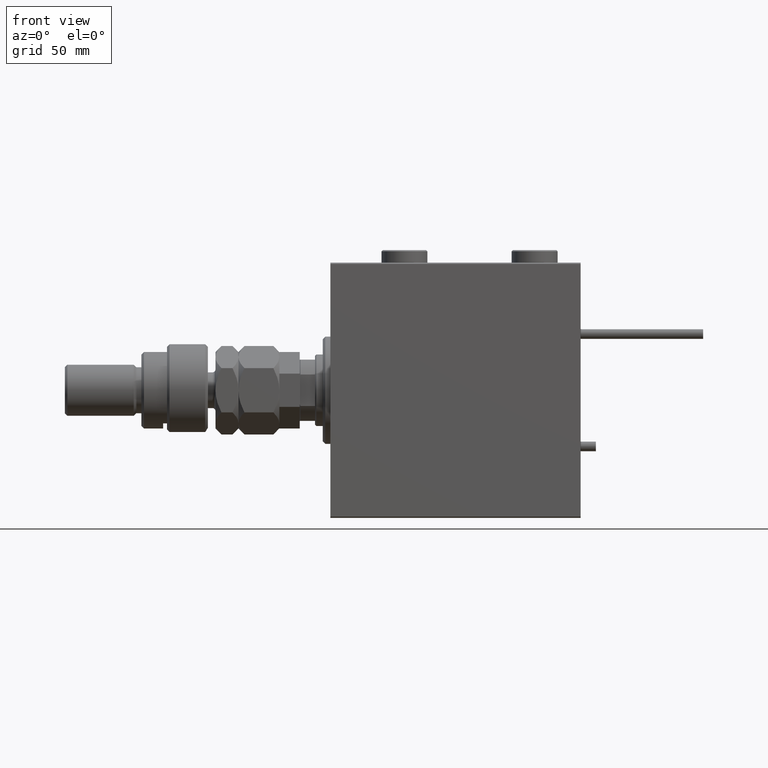
[diagram: clean part render]
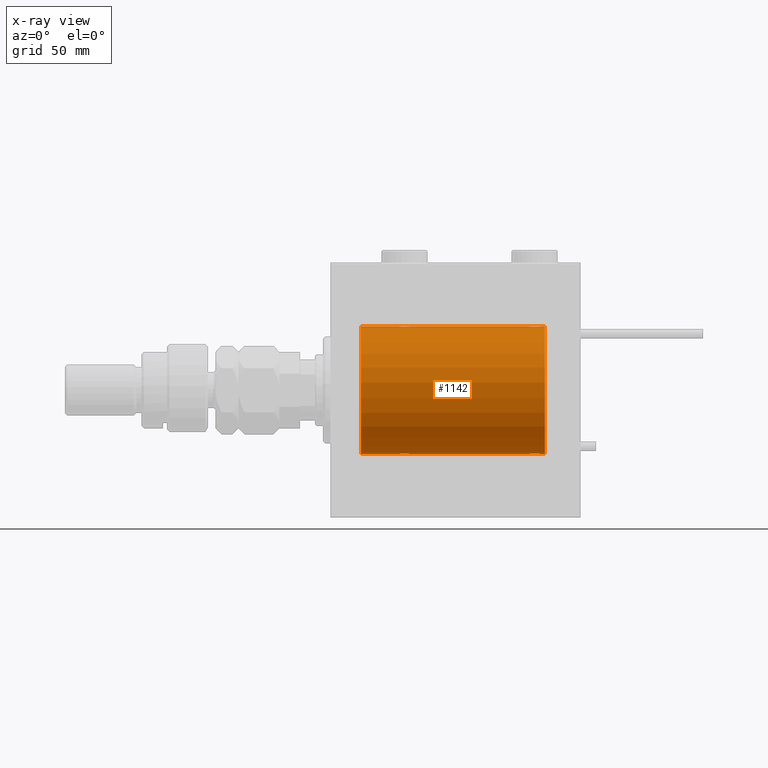
[diagram: x-ray — body ghosted, one internal face saturated and labeled with its STEP entity id]
A machine part, front view, then the same camera in x-ray: the body is ghosted and one INTERNAL B-rep face — a face not visible from any outside direction — is saturated and labeled: STEP entity #1142.
In plain terms, the highlighted cylindrical surface (partial cylindrical patch) has radius 25 mm, axis along (-1, -0, -0).
Its self-contained STEP definition (entity closure, byte-faithful):
#157 = VERTEX_POINT ( 'NONE', #38398 ) ;
#480 = DIRECTION ( 'NONE',  ( -1.000000000000000000, -0.000000000000000000, -0.000000000000000000 ) ) ;
#541 = CARTESIAN_POINT ( 'NONE',  ( 80.80788342405803348, -2.371528299825742092, -24.88734287464371064 ) ) ;
#613 = CARTESIAN_POINT ( 'NONE',  ( 82.24606379094068132, -1.109818057797411051, 24.97580694515542277 ) ) ;
#890 = CARTESIAN_POINT ( 'NONE',  ( 77.51582159942344674, -0.3254210271412246169, 24.99840249400844883 ) ) ;
#1024 = DIRECTION ( 'NONE',  ( -1.000000000000000000, -0.000000000000000000, -0.000000000000000000 ) ) ;
#1142 = ADVANCED_FACE ( 'NONE', ( #21815 ), #38948, .F. ) ;
#1162 = CARTESIAN_POINT ( 'NONE',  ( 82.50000000000005684, -0.3305063766663757230, 25.00000000000000711 ) ) ;
#1298 = CARTESIAN_POINT ( 'NONE',  ( 30.11036796508863844, -2.245863995402896496, -24.89899750494197406 ) ) ;
#1342 = B_SPLINE_CURVE_WITH_KNOTS ( 'NONE', 3,
 ( #16990, #11958, #46472, #34106, #51235, #29061, #12785, #20088, #8023, #25667, #2953, #46744, #20644, #37222, #15884, #45914, #37778, #11681, #25129, #42260, #3793, #20913, #28786, #55166, #33833, #7449, #24566, #42809, #21732, #21466, #39140, #9385 ),
 .UNSPECIFIED., .F., .F.,
 ( 4, 2, 2, 2, 2, 2, 2, 2, 2, 2, 2, 2, 2, 2, 2, 4 ),
 ( 0.007821024441662254717, 0.008309723826317859385, 0.008798423210973465788, 0.009287122595629072191, 0.009775821980284676860, 0.01026452136494028153, 0.01075322074959588793, 0.01124192013425149433, 0.01173061951890709900, 0.01221931890356270367, 0.01270801828821831007, 0.01319671767287391648, 0.01368541705752952115, 0.01417411644218512581, 0.01466281582684073222, 0.01564021459615194329 ),
 .UNSPECIFIED. ) ;
#1365 = CARTESIAN_POINT ( 'NONE',  ( 80.64904390169097326, -2.419770561643902695, -24.88263927071750814 ) ) ;
#1578 = CARTESIAN_POINT ( 'NONE',  ( 28.67403429960539540, -2.484007091859760319, -24.87630842367762440 ) ) ;
#2953 = CARTESIAN_POINT ( 'NONE',  ( 27.47463817756919369, -1.987446652080268938, 24.92104239223420592 ) ) ;
#3245 = LINE ( 'NONE', #45368, #17620 ) ;
#3661 = B_SPLINE_CURVE_WITH_KNOTS ( 'NONE', 3,
 ( #6218, #13823, #890, #44410, #18019, #52557, #18574, #13548, #34870, #40194, #31484, #52001, #48616, #53107, #47765, #43848, #9615, #27271, #18859, #30644, #26710, #35987, #31759, #48899, #10454, #5381, #23344, #39635, #613, #43570, #1162, #5099 ),
 .UNSPECIFIED., .F., .F.,
 ( 4, 2, 2, 2, 2, 2, 2, 2, 2, 2, 2, 2, 2, 2, 2, 4 ),
 ( 0.007821024441662285942, 0.008309723826317894080, 0.008798423210973503952, 0.009287122595629112090, 0.009775821980284721963, 0.01026452136494033010, 0.01075322074959593997, 0.01124192013425154811, 0.01173061951890715798, 0.01221931890356276612, 0.01270801828821837426, 0.01319671767287398240, 0.01368541705752959400, 0.01417411644218520214, 0.01466281582684081028, 0.01564021459615201268 ),
 .UNSPECIFIED. ) ;
#3793 = CARTESIAN_POINT ( 'NONE',  ( 29.80435660916301899, -2.372734907014179662, 24.88722742718433878 ) ) ;
#4206 = CARTESIAN_POINT ( 'NONE',  ( 82.42014909220930008, -0.6480119923854186226, -24.99212088949390775 ) ) ;
#5099 = CARTESIAN_POINT ( 'NONE',  ( 82.50000000000001421, 2.858952873890094713E-15, 25.00000000000000000 ) ) ;
#5300 = CARTESIAN_POINT ( 'NONE',  ( 78.89276154161592558, -2.247417070759896607, -24.89885693081946272 ) ) ;
#5381 = CARTESIAN_POINT ( 'NONE',  ( 81.88185954148649159, -1.653834020452933817, 24.94550385189585029 ) ) ;
#5517 = CARTESIAN_POINT ( 'NONE',  ( 30.65383336149338689, -1.881857718844712757, -24.92933960374833902 ) ) ;
#5580 = CARTESIAN_POINT ( 'NONE',  ( 77.56650644760256341, -0.6588655613945877398, -24.99312727339970408 ) ) ;
#5790 = CARTESIAN_POINT ( 'NONE',  ( 30.98749815834399257, -1.525407911884362644, -24.95379469572362652 ) ) ;
#6068 = CARTESIAN_POINT ( 'NONE',  ( 28.19564339083698457, -2.372734907014170780, -24.88722742718433878 ) ) ;
#6218 = CARTESIAN_POINT ( 'NONE',  ( 77.50000000000001421, -1.940203396391078535E-23, 25.00000000000000000 ) ) ;
#7449 = CARTESIAN_POINT ( 'NONE',  ( 30.88185954148645962, -1.653834020452941589, 24.94550385189585029 ) ) ;
#7597 = CARTESIAN_POINT ( 'NONE',  ( 82.17011290280929359, -1.252049606094341572, -24.96900299967627745 ) ) ;
#7988 = LINE ( 'NONE', #32685, #20428 ) ;
#8023 = CARTESIAN_POINT ( 'NONE',  ( 27.11587617213528745, -1.651251241585107055, 24.94567559498349141 ) ) ;
#8046 = EDGE_CURVE ( 'NONE', #24878, #50093, #42377, .T. ) ;
#8187 = DIRECTION ( 'NONE',  ( -1.000000000000000000, -0.000000000000000000, -0.000000000000000000 ) ) ;
#8225 = ORIENTED_EDGE ( 'NONE', *, *, #40697, .T. ) ;
#8368 = CARTESIAN_POINT ( 'NONE',  ( 31.50000000000000000, 3.061616978460191625E-15, -25.00000000000000000 ) ) ;
#8433 = CARTESIAN_POINT ( 'NONE',  ( 82.50000000000000000, -0.1631750940176171505, -25.00000000000000355 ) ) ;
#8586 = CARTESIAN_POINT ( 'NONE',  ( 82.50000000000001421, 3.061616978466502512E-15, -25.00000000000000000 ) ) ;
#9117 = ORIENTED_EDGE ( 'NONE', *, *, #49446, .F. ) ;
#9385 = CARTESIAN_POINT ( 'NONE',  ( 31.50000000000000000, -2.695968940278339017E-15, 25.00000000000000000 ) ) ;
#9534 = VECTOR ( 'NONE', #10228, 1000.000000000000000 ) ;
#9535 = CARTESIAN_POINT ( 'NONE',  ( 80.32947680114270383, -2.483544361357264751, -24.87635491893501438 ) ) ;
#9615 = CARTESIAN_POINT ( 'NONE',  ( 79.83293504821945419, -2.499872792855085013, 24.87469871246082675 ) ) ;
#9750 = CARTESIAN_POINT ( 'NONE',  ( 31.50000000000000000, 3.061616978460191625E-15, -25.00000000000000000 ) ) ;
#9933 = DIRECTION ( 'NONE',  ( 0.000000000000000000, 0.000000000000000000, 1.000000000000000000 ) ) ;
#9952 = CARTESIAN_POINT ( 'NONE',  ( 84.00000000000000000, 3.061616997868382254E-15, -25.00000000000000000 ) ) ;
#10228 = DIRECTION ( 'NONE',  ( -1.000000000000000000, -0.000000000000000000, -0.000000000000000000 ) ) ;
#10347 = EDGE_CURVE ( 'NONE', #22539, #47241, #1342, .T. ) ;
#10454 = CARTESIAN_POINT ( 'NONE',  ( 81.65121133559114242, -1.884161199660613351, 24.92916496727982434 ) ) ;
#10583 = CARTESIAN_POINT ( 'NONE',  ( 28.35439333851369526, -2.420689345803757053, -24.88254961038873958 ) ) ;
#10866 = CARTESIAN_POINT ( 'NONE',  ( 31.24760251019550950, -1.106703319666878960, -24.97594585958023217 ) ) ;
#11681 = CARTESIAN_POINT ( 'NONE',  ( 29.16323589638543368, -2.500125740978199840, 24.87467329022545570 ) ) ;
#11845 = AXIS2_PLACEMENT_3D ( 'NONE', #34732, #480, #25213 ) ;
#11958 = CARTESIAN_POINT ( 'NONE',  ( 26.50000000000000711, -0.1631750940176214526, 25.00000000000000711 ) ) ;
#12228 = ORIENTED_EDGE ( 'NONE', *, *, #19461, .F. ) ;
#12353 = AXIS2_PLACEMENT_3D ( 'NONE', #18897, #27031, #9933 ) ;
#12785 = CARTESIAN_POINT ( 'NONE',  ( 26.82988709719075970, -1.252049606094344236, 24.96900299967627390 ) ) ;
#13180 = CARTESIAN_POINT ( 'NONE',  ( 31.50000000000000000, -2.695968940278339017E-15, 25.00000000000000000 ) ) ;
#13399 = EDGE_CURVE ( 'NONE', #23662, #53633, #36044, .T. ) ;
#13485 = CARTESIAN_POINT ( 'NONE',  ( 82.50000000000001421, 2.858952873890094713E-15, 25.00000000000000000 ) ) ;
#13548 = CARTESIAN_POINT ( 'NONE',  ( 78.01250184165604651, -1.525407911884365530, 24.95379469572362297 ) ) ;
#13745 = CARTESIAN_POINT ( 'NONE',  ( 81.52536182243082408, -1.987446652080251619, -24.92104239223420592 ) ) ;
#13746 = VECTOR ( 'NONE', #33121, 1000.000000000000000 ) ;
#13823 = CARTESIAN_POINT ( 'NONE',  ( 77.50000000000004263, -0.1631750940176218967, 25.00000000000000355 ) ) ;
#13956 = CARTESIAN_POINT ( 'NONE',  ( 84.00000000000000000, 0.000000000000000000, 25.00000000000000000 ) ) ;
#13957 = CARTESIAN_POINT ( 'NONE',  ( 27.89276154161589716, -2.247417070759893498, -24.89885693081946272 ) ) ;
#14289 = DIRECTION ( 'NONE',  ( -1.000000000000000000, 0.000000000000000000, 0.000000000000000000 ) ) ;
#14317 = VERTEX_POINT ( 'NONE', #9750 ) ;
#14403 = CARTESIAN_POINT ( 'NONE',  ( 77.50000000000001421, -1.940203396391078535E-23, 25.00000000000000000 ) ) ;
#14631 = EDGE_LOOP ( 'NONE', ( #12228, #29991, #28186, #8225, #17453, #40733, #23167, #37527, #25651, #9117, #34625, #49232 ) ) ;
#15884 = CARTESIAN_POINT ( 'NONE',  ( 28.35095609830903740, -2.419770561643915130, 24.88263927071751169 ) ) ;
#16009 = CARTESIAN_POINT ( 'NONE',  ( 84.00000000000000000, 0.000000000000000000, 25.00000000000000000 ) ) ;
#16990 = CARTESIAN_POINT ( 'NONE',  ( 26.50000000000000355, -1.940558383798427991E-23, 25.00000000000000000 ) ) ;
#17397 = CARTESIAN_POINT ( 'NONE',  ( 81.65383336149341176, -1.881857718844715421, -24.92933960374833546 ) ) ;
#17453 = ORIENTED_EDGE ( 'NONE', *, *, #28473, .T. ) ;
#17620 = VECTOR ( 'NONE', #24578, 1000.000000000000000 ) ;
#17944 = CARTESIAN_POINT ( 'NONE',  ( 77.50000000000001421, -3.163294216715586498E-15, -25.00000000000000000 ) ) ;
#18019 = CARTESIAN_POINT ( 'NONE',  ( 77.62784030591393503, -0.8058335233485520721, 24.98746277938383287 ) ) ;
#18431 = CARTESIAN_POINT ( 'NONE',  ( 29.16706495178061331, -2.499872792855078352, -24.87469871246083031 ) ) ;
#18495 = CARTESIAN_POINT ( 'NONE',  ( 81.88412382786472676, -1.651251241585101059, -24.94567559498348430 ) ) ;
#18574 = CARTESIAN_POINT ( 'NONE',  ( 77.82988709719073483, -1.252049606094335799, 24.96900299967626680 ) ) ;
#18859 = CARTESIAN_POINT ( 'NONE',  ( 80.32596570039464723, -2.484007091859765204, 24.87630842367763861 ) ) ;
#18897 = CARTESIAN_POINT ( 'NONE',  ( 84.00000000000000000, 0.000000000000000000, 0.000000000000000000 ) ) ;
#19267 = CARTESIAN_POINT ( 'NONE',  ( 29.80788342405805125, -2.371528299825743424, -24.88734287464369999 ) ) ;
#19461 = EDGE_CURVE ( 'NONE', #23662, #24878, #51758, .T. ) ;
#19889 = CARTESIAN_POINT ( 'NONE',  ( 26.50000000000000355, -3.314090237927254693E-15, -25.00000000000000000 ) ) ;
#20088 = CARTESIAN_POINT ( 'NONE',  ( 27.01250184165601809, -1.525407911884372192, 24.95379469572361941 ) ) ;
#20428 = VECTOR ( 'NONE', #54863, 1000.000000000000000 ) ;
#20644 = CARTESIAN_POINT ( 'NONE',  ( 27.88963203491136156, -2.245863995402906266, 24.89899750494197050 ) ) ;
#20913 = CARTESIAN_POINT ( 'NONE',  ( 30.10723845838410284, -2.247417070759902380, 24.89885693081946272 ) ) ;
#21329 = CARTESIAN_POINT ( 'NONE',  ( 82.37215969408609340, -0.8058335233485441895, -24.98746277938383287 ) ) ;
#21466 = CARTESIAN_POINT ( 'NONE',  ( 31.43349355239747567, -0.6588655613945894052, 24.99312727339970053 ) ) ;
#21732 = CARTESIAN_POINT ( 'NONE',  ( 31.24606379094067066, -1.109818057797418822, 24.97580694515541921 ) ) ;
#21815 = FACE_OUTER_BOUND ( 'NONE', #14631, .T. ) ;
#22429 = CARTESIAN_POINT ( 'NONE',  ( 81.98749815834398191, -1.525407911884367529, -24.95379469572361586 ) ) ;
#22539 = VERTEX_POINT ( 'NONE', #32870 ) ;
#22638 = CARTESIAN_POINT ( 'NONE',  ( 27.01461966282905891, -1.528152964861308138, -24.95362559291378801 ) ) ;
#22917 = CARTESIAN_POINT ( 'NONE',  ( 27.47743225659811017, -1.989585286700241928, -24.92087098724766037 ) ) ;
#23167 = ORIENTED_EDGE ( 'NONE', *, *, #48241, .T. ) ;
#23198 = CARTESIAN_POINT ( 'NONE',  ( 31.17011290280923674, -1.252049606094335132, -24.96900299967627035 ) ) ;
#23344 = CARTESIAN_POINT ( 'NONE',  ( 81.98538033717099438, -1.528152964861309915, 24.95362559291379156 ) ) ;
#23477 = CARTESIAN_POINT ( 'NONE',  ( 31.37215969408607563, -0.8058335233485421911, -24.98746277938383287 ) ) ;
#23662 = VERTEX_POINT ( 'NONE', #48836 ) ;
#24405 = EDGE_CURVE ( 'NONE', #22539, #157, #7988, .T. ) ;
#24566 = CARTESIAN_POINT ( 'NONE',  ( 30.98538033717095175, -1.528152964861314800, 24.95362559291378801 ) ) ;
#24569 = B_SPLINE_CURVE_WITH_KNOTS ( 'NONE', 3,
 ( #8368, #25475, #27125, #36114, #23477, #10866, #23198, #5790, #53519, #5517, #27405, #31342, #1298, #19267, #40048, #35843, #18431, #52404, #1578, #10583, #6068, #13957, #35565, #22917, #27971, #49029, #22638, #39770, #45098, #52693, #31612, #48466 ),
 .UNSPECIFIED., .F., .F.,
 ( 4, 2, 2, 2, 2, 2, 2, 2, 2, 2, 2, 2, 2, 2, 2, 4 ),
 ( 0.007821024441662303289, 0.008309723826317913162, 0.008798423210973523034, 0.009287122595629127703, 0.009775821980284732371, 0.01026452136494033877, 0.01075322074959594518, 0.01124192013425154985, 0.01173061951890715451, 0.01221931890356276092, 0.01270801828821836559, 0.01319671767287397025, 0.01368541705752957666, 0.01417411644218518132, 0.01466281582684078599, 0.01564021459615200227 ),
 .UNSPECIFIED. ) ;
#24578 = DIRECTION ( 'NONE',  ( -1.000000000000000000, -0.000000000000000000, -0.000000000000000000 ) ) ;
#24878 = VERTEX_POINT ( 'NONE', #45465 ) ;
#25129 = CARTESIAN_POINT ( 'NONE',  ( 29.32596570039460104, -2.484007091859769645, 24.87630842367763506 ) ) ;
#25213 = DIRECTION ( 'NONE',  ( 0.000000000000000000, 0.000000000000000000, 1.000000000000000000 ) ) ;
#25475 = CARTESIAN_POINT ( 'NONE',  ( 31.49999999999999289, -0.1631750940176174836, -25.00000000000000711 ) ) ;
#25536 = CARTESIAN_POINT ( 'NONE',  ( 82.48417840057659589, -0.3254210271412191768, -24.99840249400844883 ) ) ;
#25651 = ORIENTED_EDGE ( 'NONE', *, *, #10347, .T. ) ;
#25667 = CARTESIAN_POINT ( 'NONE',  ( 27.34616663850662377, -1.881857718844722971, 24.92933960374833902 ) ) ;
#26636 = CARTESIAN_POINT ( 'NONE',  ( 79.19564339083697746, -2.372734907014171224, -24.88722742718433523 ) ) ;
#26710 = CARTESIAN_POINT ( 'NONE',  ( 80.80435660916305096, -2.372734907014176553, 24.88722742718433523 ) ) ;
#27031 = DIRECTION ( 'NONE',  ( -1.000000000000000000, 0.000000000000000000, 0.000000000000000000 ) ) ;
#27125 = CARTESIAN_POINT ( 'NONE',  ( 31.48417840057656036, -0.3254210271412191213, -24.99840249400844172 ) ) ;
#27271 = CARTESIAN_POINT ( 'NONE',  ( 80.16323589638544433, -2.500125740978196731, 24.87467329022545925 ) ) ;
#27405 = CARTESIAN_POINT ( 'NONE',  ( 30.52536182243080276, -1.987446652080258724, -24.92104239223419881 ) ) ;
#27971 = CARTESIAN_POINT ( 'NONE',  ( 27.34878866440887535, -1.884161199660613351, -24.92916496727982079 ) ) ;
#28186 = ORIENTED_EDGE ( 'NONE', *, *, #36637, .T. ) ;
#28473 = EDGE_CURVE ( 'NONE', #14317, #52354, #24569, .T. ) ;
#28786 = CARTESIAN_POINT ( 'NONE',  ( 30.25084023924055998, -2.170728182476724388, 24.90574631553725027 ) ) ;
#28926 = CARTESIAN_POINT ( 'NONE',  ( 82.24760251019554858, -1.106703319666881180, -24.97594585958024282 ) ) ;
#29061 = CARTESIAN_POINT ( 'NONE',  ( 26.75239748980448695, -1.106703319666887397, 24.97594585958023572 ) ) ;
#29991 = ORIENTED_EDGE ( 'NONE', *, *, #13399, .T. ) ;
#30304 = CARTESIAN_POINT ( 'NONE',  ( 78.74915976075949686, -2.170728182476720391, -24.90574631553725027 ) ) ;
#30644 = CARTESIAN_POINT ( 'NONE',  ( 80.64560666148635448, -2.420689345803758830, 24.88254961038874313 ) ) ;
#31284 = AXIS2_PLACEMENT_3D ( 'NONE', #39543, #14289, #35894 ) ;
#31342 = CARTESIAN_POINT ( 'NONE',  ( 30.25383195424503668, -2.169003991399866660, -24.90589728951138682 ) ) ;
#31484 = CARTESIAN_POINT ( 'NONE',  ( 78.47463817756926119, -1.987446652080270271, 24.92104239223421303 ) ) ;
#31612 = CARTESIAN_POINT ( 'NONE',  ( 26.50000000000001066, -0.3305063766663772773, -25.00000000000000711 ) ) ;
#31759 = CARTESIAN_POINT ( 'NONE',  ( 81.25084023924057419, -2.170728182476720836, 24.90574631553725027 ) ) ;
#32685 = CARTESIAN_POINT ( 'NONE',  ( 84.00000000000000000, 0.000000000000000000, 25.00000000000000000 ) ) ;
#32782 = VECTOR ( 'NONE', #8187, 1000.000000000000000 ) ;
#32788 = CARTESIAN_POINT ( 'NONE',  ( 77.50000000000001421, -3.163294216715586498E-15, -25.00000000000000000 ) ) ;
#32870 = CARTESIAN_POINT ( 'NONE',  ( 26.50000000000000355, -1.940558383798427991E-23, 25.00000000000000000 ) ) ;
#33121 = DIRECTION ( 'NONE',  ( -1.000000000000000000, -0.000000000000000000, -0.000000000000000000 ) ) ;
#33833 = CARTESIAN_POINT ( 'NONE',  ( 30.65121133559112820, -1.884161199660620900, 24.92916496727982434 ) ) ;
#34106 = CARTESIAN_POINT ( 'NONE',  ( 26.57985090779070703, -0.6480119923854241737, 24.99212088949390420 ) ) ;
#34274 = CARTESIAN_POINT ( 'NONE',  ( 84.00000000000000000, 3.061616997868382254E-15, -25.00000000000000000 ) ) ;
#34625 = ORIENTED_EDGE ( 'NONE', *, *, #53228, .T. ) ;
#34732 = CARTESIAN_POINT ( 'NONE',  ( 84.00000000000000000, 0.000000000000000000, 0.000000000000000000 ) ) ;
#34792 = CARTESIAN_POINT ( 'NONE',  ( 79.83676410361458409, -2.500125740978189182, -24.87467329022545215 ) ) ;
#34870 = CARTESIAN_POINT ( 'NONE',  ( 78.11587617213530166, -1.651251241585109275, 24.94567559498348785 ) ) ;
#35071 = CARTESIAN_POINT ( 'NONE',  ( 79.67403429960539540, -2.484007091859756766, -24.87630842367762796 ) ) ;
#35565 = CARTESIAN_POINT ( 'NONE',  ( 27.74915976075945068, -2.170728182476715951, -24.90574631553724672 ) ) ;
#35627 = CARTESIAN_POINT ( 'NONE',  ( 78.47743225659816346, -1.989585286700248590, -24.92087098724766747 ) ) ;
#35843 = CARTESIAN_POINT ( 'NONE',  ( 29.32947680114269318, -2.483544361357266972, -24.87635491893501793 ) ) ;
#35894 = DIRECTION ( 'NONE',  ( 0.000000000000000000, 0.000000000000000000, 1.000000000000000000 ) ) ;
#35987 = CARTESIAN_POINT ( 'NONE',  ( 81.10723845838413126, -2.247417070759898383, 24.89885693081947338 ) ) ;
#36044 = LINE ( 'NONE', #9952, #9534 ) ;
#36114 = CARTESIAN_POINT ( 'NONE',  ( 31.42014909220929653, -0.6480119923854192887, -24.99212088949391131 ) ) ;
#36637 = EDGE_CURVE ( 'NONE', #53633, #43998, #38408, .T. ) ;
#37222 = CARTESIAN_POINT ( 'NONE',  ( 28.19211657594193809, -2.371528299825754083, 24.88734287464370709 ) ) ;
#37527 = ORIENTED_EDGE ( 'NONE', *, *, #24405, .F. ) ;
#37778 = CARTESIAN_POINT ( 'NONE',  ( 28.83293504821940090, -2.499872792855088122, 24.87469871246082320 ) ) ;
#38398 = CARTESIAN_POINT ( 'NONE',  ( 11.99999999999999645, 0.000000000000000000, 25.00000000000000000 ) ) ;
#38408 = B_SPLINE_CURVE_WITH_KNOTS ( 'NONE', 3,
 ( #42132, #8433, #25536, #4206, #21329, #28926, #7597, #22429, #18495, #17397, #13745, #39279, #39834, #541, #1365, #9535, #44051, #34792, #35071, #42954, #26636, #5300, #30304, #35627, #51924, #48257, #51652, #52756, #43222, #5580, #43767, #17944 ),
 .UNSPECIFIED., .F., .F.,
 ( 4, 2, 2, 2, 2, 2, 2, 2, 2, 2, 2, 2, 2, 2, 2, 4 ),
 ( 0.007821024441662298085, 0.008309723826317902753, 0.008798423210973509156, 0.009287122595629113825, 0.009775821980284718493, 0.01026452136494032490, 0.01075322074959592956, 0.01124192013425153597, 0.01173061951890714064, 0.01221931890356274530, 0.01270801828821835171, 0.01319671767287395811, 0.01368541705752956104, 0.01417411644218516745, 0.01466281582684077212, 0.01564021459615199880 ),
 .UNSPECIFIED. ) ;
#38948 = CYLINDRICAL_SURFACE ( 'NONE', #11845, 25.00000000000000000 ) ;
#39140 = CARTESIAN_POINT ( 'NONE',  ( 31.49999999999998579, -0.3305063766663723368, 25.00000000000000000 ) ) ;
#39279 = CARTESIAN_POINT ( 'NONE',  ( 81.25383195424505800, -2.169003991399860443, -24.90589728951139037 ) ) ;
#39493 = LINE ( 'NONE', #13956, #40408 ) ;
#39543 = CARTESIAN_POINT ( 'NONE',  ( 11.99999999999999645, 0.000000000000000000, 0.000000000000000000 ) ) ;
#39635 = CARTESIAN_POINT ( 'NONE',  ( 82.16827641493958367, -1.255214705003178777, 24.96884293994578030 ) ) ;
#39770 = CARTESIAN_POINT ( 'NONE',  ( 26.83172358506043764, -1.255214705003178555, -24.96884293994578741 ) ) ;
#39834 = CARTESIAN_POINT ( 'NONE',  ( 81.11036796508865621, -2.245863995402895164, -24.89899750494197406 ) ) ;
#40048 = CARTESIAN_POINT ( 'NONE',  ( 29.64904390169096615, -2.419770561643904472, -24.88263927071750459 ) ) ;
#40194 = CARTESIAN_POINT ( 'NONE',  ( 78.34616663850664509, -1.881857718844724303, 24.92933960374833902 ) ) ;
#40408 = VECTOR ( 'NONE', #1024, 1000.000000000000000 ) ;
#40697 = EDGE_CURVE ( 'NONE', #43998, #14317, #54791, .T. ) ;
#40733 = ORIENTED_EDGE ( 'NONE', *, *, #52678, .T. ) ;
#42132 = CARTESIAN_POINT ( 'NONE',  ( 82.50000000000001421, 3.061616978466502512E-15, -25.00000000000000000 ) ) ;
#42260 = CARTESIAN_POINT ( 'NONE',  ( 29.64560666148631896, -2.420689345803764159, 24.88254961038873958 ) ) ;
#42377 = LINE ( 'NONE', #16009, #13746 ) ;
#42809 = CARTESIAN_POINT ( 'NONE',  ( 31.16827641493956591, -1.255214705003184106, 24.96884293994578385 ) ) ;
#42954 = CARTESIAN_POINT ( 'NONE',  ( 79.35439333851368815, -2.420689345803750836, -24.88254961038873958 ) ) ;
#43222 = CARTESIAN_POINT ( 'NONE',  ( 77.75393620905936132, -1.109818057797414381, -24.97580694515541921 ) ) ;
#43570 = CARTESIAN_POINT ( 'NONE',  ( 82.43349355239749343, -0.6588655613945808565, 24.99312727339970053 ) ) ;
#43767 = CARTESIAN_POINT ( 'NONE',  ( 77.50000000000001421, -0.3305063766663793867, -25.00000000000000711 ) ) ;
#43848 = CARTESIAN_POINT ( 'NONE',  ( 79.67052319885733880, -2.483544361357273189, 24.87635491893502149 ) ) ;
#43998 = VERTEX_POINT ( 'NONE', #32788 ) ;
#44051 = CARTESIAN_POINT ( 'NONE',  ( 80.16706495178063108, -2.499872792855076575, -24.87469871246082675 ) ) ;
#44410 = CARTESIAN_POINT ( 'NONE',  ( 77.57985090779074255, -0.6480119923854255060, 24.99212088949390775 ) ) ;
#45098 = CARTESIAN_POINT ( 'NONE',  ( 26.75393620905934000, -1.109818057797415936, -24.97580694515542987 ) ) ;
#45368 = CARTESIAN_POINT ( 'NONE',  ( 84.00000000000000000, 3.061616997868382254E-15, -25.00000000000000000 ) ) ;
#45465 = CARTESIAN_POINT ( 'NONE',  ( 84.00000000000000000, 0.000000000000000000, 25.00000000000000000 ) ) ;
#45499 = VERTEX_POINT ( 'NONE', #14403 ) ;
#45643 = CIRCLE ( 'NONE', #31284, 25.00000000000000000 ) ;
#45914 = CARTESIAN_POINT ( 'NONE',  ( 28.67052319885732103, -2.483544361357276742, 24.87635491893501438 ) ) ;
#46472 = CARTESIAN_POINT ( 'NONE',  ( 26.51582159942343608, -0.3254210271412232292, 24.99840249400844883 ) ) ;
#46744 = CARTESIAN_POINT ( 'NONE',  ( 27.74616804575498108, -2.169003991399877318, 24.90589728951138326 ) ) ;
#46830 = CARTESIAN_POINT ( 'NONE',  ( 11.99999999999999645, 3.061616997868382254E-15, -25.00000000000000000 ) ) ;
#47241 = VERTEX_POINT ( 'NONE', #13180 ) ;
#47765 = CARTESIAN_POINT ( 'NONE',  ( 79.35095609830904095, -2.419770561643911133, 24.88263927071751169 ) ) ;
#48241 = EDGE_CURVE ( 'NONE', #50382, #157, #45643, .T. ) ;
#48257 = CARTESIAN_POINT ( 'NONE',  ( 78.11814045851357946, -1.653834020452939146, -24.94550385189584318 ) ) ;
#48466 = CARTESIAN_POINT ( 'NONE',  ( 26.50000000000000355, -3.314090237927254693E-15, -25.00000000000000000 ) ) ;
#48616 = CARTESIAN_POINT ( 'NONE',  ( 78.88963203491135801, -2.245863995402903601, 24.89899750494197050 ) ) ;
#48836 = CARTESIAN_POINT ( 'NONE',  ( 84.00000000000000000, 3.061616997868382254E-15, -25.00000000000000000 ) ) ;
#48899 = CARTESIAN_POINT ( 'NONE',  ( 81.52256774340189338, -1.989585286700245925, 24.92087098724765681 ) ) ;
#49029 = CARTESIAN_POINT ( 'NONE',  ( 27.11814045851354393, -1.653834020452936260, -24.94550385189585029 ) ) ;
#49232 = ORIENTED_EDGE ( 'NONE', *, *, #8046, .F. ) ;
#49446 = EDGE_CURVE ( 'NONE', #45499, #47241, #39493, .T. ) ;
#50093 = VERTEX_POINT ( 'NONE', #13485 ) ;
#50382 = VERTEX_POINT ( 'NONE', #46830 ) ;
#51235 = CARTESIAN_POINT ( 'NONE',  ( 26.62784030591392437, -0.8058335233485491855, 24.98746277938383287 ) ) ;
#51652 = CARTESIAN_POINT ( 'NONE',  ( 78.01461966282909088, -1.528152964861308138, -24.95362559291378091 ) ) ;
#51758 = CIRCLE ( 'NONE', #12353, 25.00000000000000000 ) ;
#51924 = CARTESIAN_POINT ( 'NONE',  ( 78.34878866440891443, -1.884161199660618013, -24.92916496727982789 ) ) ;
#52001 = CARTESIAN_POINT ( 'NONE',  ( 78.74616804575498463, -2.169003991399877762, 24.90589728951138682 ) ) ;
#52354 = VERTEX_POINT ( 'NONE', #19889 ) ;
#52404 = CARTESIAN_POINT ( 'NONE',  ( 28.83676410361456632, -2.500125740978190958, -24.87467329022545215 ) ) ;
#52557 = CARTESIAN_POINT ( 'NONE',  ( 77.75239748980452248, -1.106703319666889396, 24.97594585958023572 ) ) ;
#52678 = EDGE_CURVE ( 'NONE', #52354, #50382, #3245, .T. ) ;
#52693 = CARTESIAN_POINT ( 'NONE',  ( 26.56650644760253499, -0.6588655613945881839, -24.99312727339971119 ) ) ;
#52756 = CARTESIAN_POINT ( 'NONE',  ( 77.83172358506043054, -1.255214705003180109, -24.96884293994577675 ) ) ;
#53107 = CARTESIAN_POINT ( 'NONE',  ( 79.19211657594196652, -2.371528299825750974, 24.88734287464371420 ) ) ;
#53228 = EDGE_CURVE ( 'NONE', #45499, #50093, #3661, .T. ) ;
#53519 = CARTESIAN_POINT ( 'NONE',  ( 30.88412382786470900, -1.651251241585097951, -24.94567559498349141 ) ) ;
#53633 = VERTEX_POINT ( 'NONE', #8586 ) ;
#54791 = LINE ( 'NONE', #34274, #32782 ) ;
#54863 = DIRECTION ( 'NONE',  ( -1.000000000000000000, -0.000000000000000000, -0.000000000000000000 ) ) ;
#55166 = CARTESIAN_POINT ( 'NONE',  ( 30.52256774340189693, -1.989585286700249700, 24.92087098724766747 ) ) ;